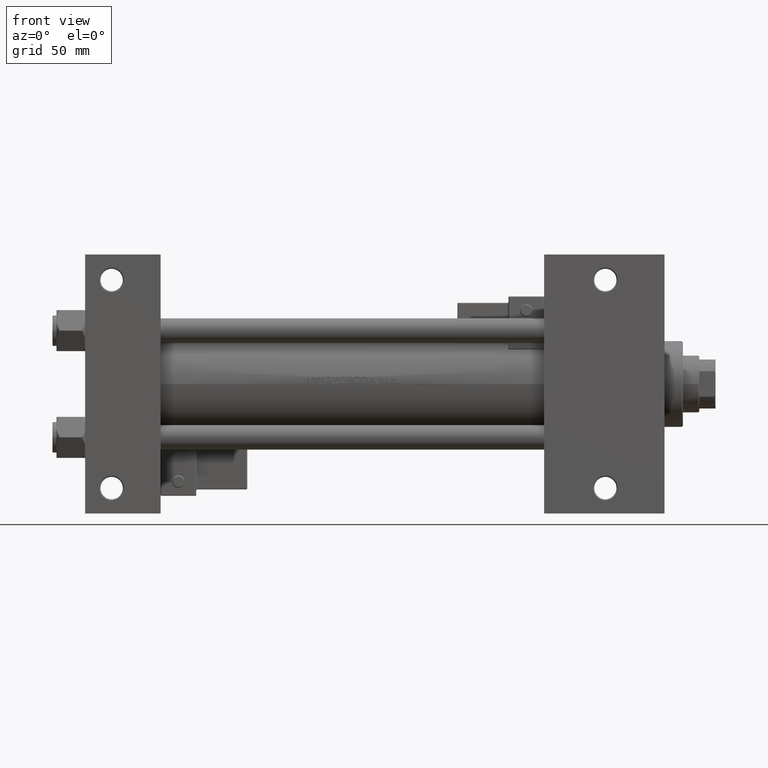
[diagram: clean part render]
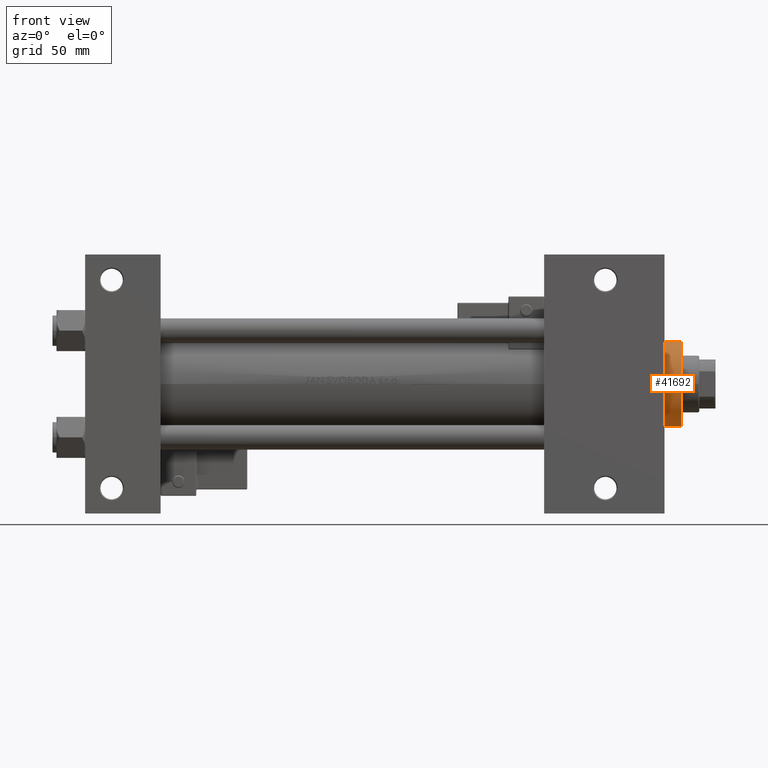
[diagram: same view with one face highlighted and labeled with its STEP entity id]
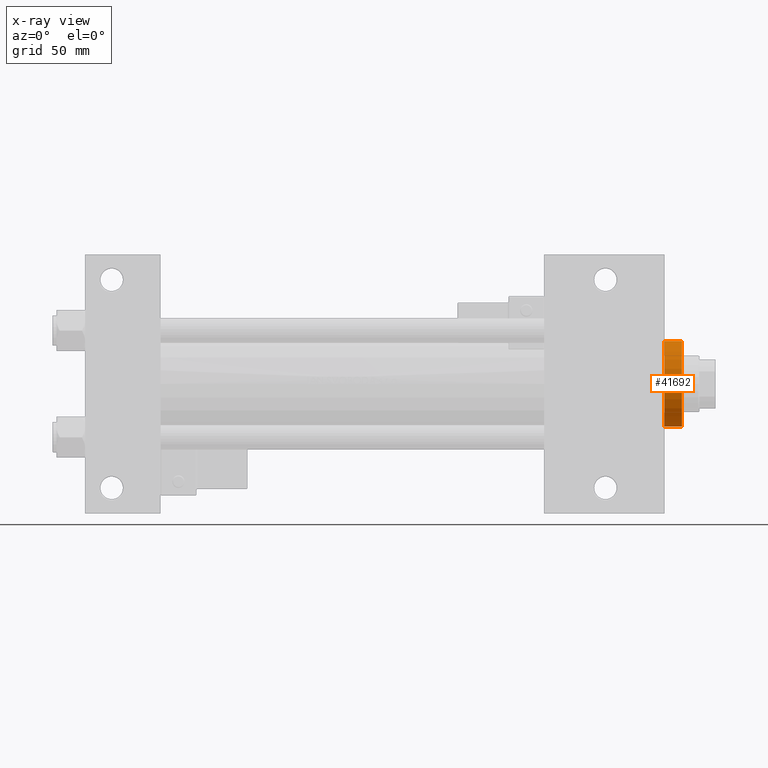
[diagram: x-ray of the same camera — body ghosted, the highlighted face saturated]
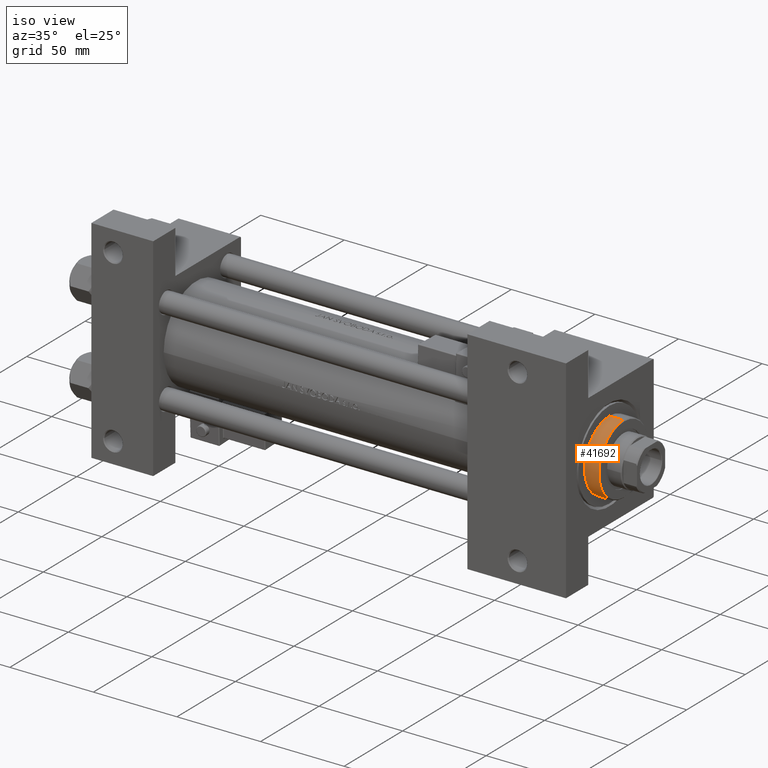
[diagram: same view with one face highlighted and labeled with its STEP entity id]
A machine part, front view. The second image highlights one B-rep face of the part: STEP entity #41692.
The next image is the same camera in x-ray: the body ghosted, the highlighted face saturated — about 0% of this face is hidden behind the body in this view.
A second angle (iso view) of the same face is appended — the face is thin or edge-on in the first view.
In plain terms, the highlighted cylindrical surface (partial cylindrical patch) has radius 21 mm, axis along (-1, -0, 0).
Its self-contained STEP definition (entity closure, byte-faithful):
#242 = ORIENTED_EDGE ( 'NONE', *, *, #23021, .T. ) ;
#3886 = CARTESIAN_POINT ( 'NONE',  ( -21.00000000000000000, 0.000000000000000000, 37.69999999999999574 ) ) ;
#7051 = CARTESIAN_POINT ( 'NONE',  ( 0.000000000000000000, 0.000000000000000000, 28.69999999999999929 ) ) ;
#7714 = ORIENTED_EDGE ( 'NONE', *, *, #8812, .T. ) ;
#8767 = VERTEX_POINT ( 'NONE', #34464 ) ;
#8812 = EDGE_CURVE ( 'NONE', #39590, #25848, #11059, .T. ) ;
#9770 = CARTESIAN_POINT ( 'NONE',  ( -21.00000000000000000, 0.000000000000000000, 37.19999999999999574 ) ) ;
#10216 = CARTESIAN_POINT ( 'NONE',  ( 21.00000000000000000, 2.571758278209441661E-15, 37.19999999999999574 ) ) ;
#11059 = CIRCLE ( 'NONE', #46601, 21.00000000000000000 ) ;
#11261 = ORIENTED_EDGE ( 'NONE', *, *, #17511, .F. ) ;
#11601 = DIRECTION ( 'NONE',  ( 0.000000000000000000, 0.000000000000000000, -1.000000000000000000 ) ) ;
#14898 = DIRECTION ( 'NONE',  ( -0.000000000000000000, -0.000000000000000000, -1.000000000000000000 ) ) ;
#15370 = DIRECTION ( 'NONE',  ( -0.000000000000000000, -0.000000000000000000, -1.000000000000000000 ) ) ;
#17511 = EDGE_CURVE ( 'NONE', #39590, #23605, #19242, .T. ) ;
#18038 = CIRCLE ( 'NONE', #46965, 21.00000000000000000 ) ;
#19242 = LINE ( 'NONE', #50852, #27424 ) ;
#20190 = LINE ( 'NONE', #3886, #39214 ) ;
#22861 = DIRECTION ( 'NONE',  ( 0.000000000000000000, 0.000000000000000000, 1.000000000000000000 ) ) ;
#23021 = EDGE_CURVE ( 'NONE', #25848, #8767, #20190, .T. ) ;
#23605 = VERTEX_POINT ( 'NONE', #44124 ) ;
#25600 = AXIS2_PLACEMENT_3D ( 'NONE', #31455, #14898, #42876 ) ;
#25848 = VERTEX_POINT ( 'NONE', #9770 ) ;
#27424 = VECTOR ( 'NONE', #15370, 1000.000000000000000 ) ;
#31455 = CARTESIAN_POINT ( 'NONE',  ( 0.000000000000000000, 0.000000000000000000, 37.69999999999999574 ) ) ;
#33502 = ORIENTED_EDGE ( 'NONE', *, *, #35442, .T. ) ;
#34464 = CARTESIAN_POINT ( 'NONE',  ( -21.00000000000000000, 0.000000000000000000, 28.69999999999999929 ) ) ;
#34839 = CYLINDRICAL_SURFACE ( 'NONE', #25600, 21.00000000000000000 ) ;
#35442 = EDGE_CURVE ( 'NONE', #8767, #23605, #18038, .T. ) ;
#39214 = VECTOR ( 'NONE', #43026, 1000.000000000000000 ) ;
#39590 = VERTEX_POINT ( 'NONE', #10216 ) ;
#40527 = EDGE_LOOP ( 'NONE', ( #11261, #7714, #242, #33502 ) ) ;
#41692 = ADVANCED_FACE ( 'NONE', ( #46749 ), #34839, .T. ) ;
#42247 = CARTESIAN_POINT ( 'NONE',  ( 0.000000000000000000, 0.000000000000000000, 37.19999999999999574 ) ) ;
#42876 = DIRECTION ( 'NONE',  ( -1.000000000000000000, 0.000000000000000000, 0.000000000000000000 ) ) ;
#43026 = DIRECTION ( 'NONE',  ( -0.000000000000000000, -0.000000000000000000, -1.000000000000000000 ) ) ;
#44124 = CARTESIAN_POINT ( 'NONE',  ( 21.00000000000000000, 2.571758278209441661E-15, 28.69999999999999929 ) ) ;
#45678 = DIRECTION ( 'NONE',  ( 1.000000000000000000, 0.000000000000000000, 0.000000000000000000 ) ) ;
#46601 = AXIS2_PLACEMENT_3D ( 'NONE', #42247, #11601, #47100 ) ;
#46749 = FACE_OUTER_BOUND ( 'NONE', #40527, .T. ) ;
#46965 = AXIS2_PLACEMENT_3D ( 'NONE', #7051, #22861, #45678 ) ;
#47100 = DIRECTION ( 'NONE',  ( 1.000000000000000000, 0.000000000000000000, 0.000000000000000000 ) ) ;
#50852 = CARTESIAN_POINT ( 'NONE',  ( 21.00000000000000000, 2.571758278209441661E-15, 37.69999999999999574 ) ) ;